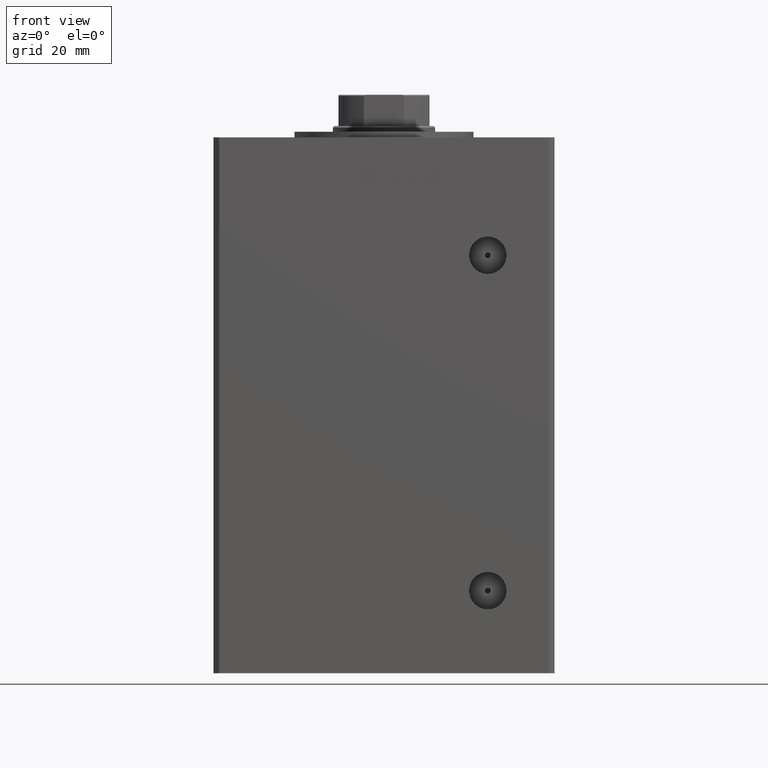
[diagram: clean part render]
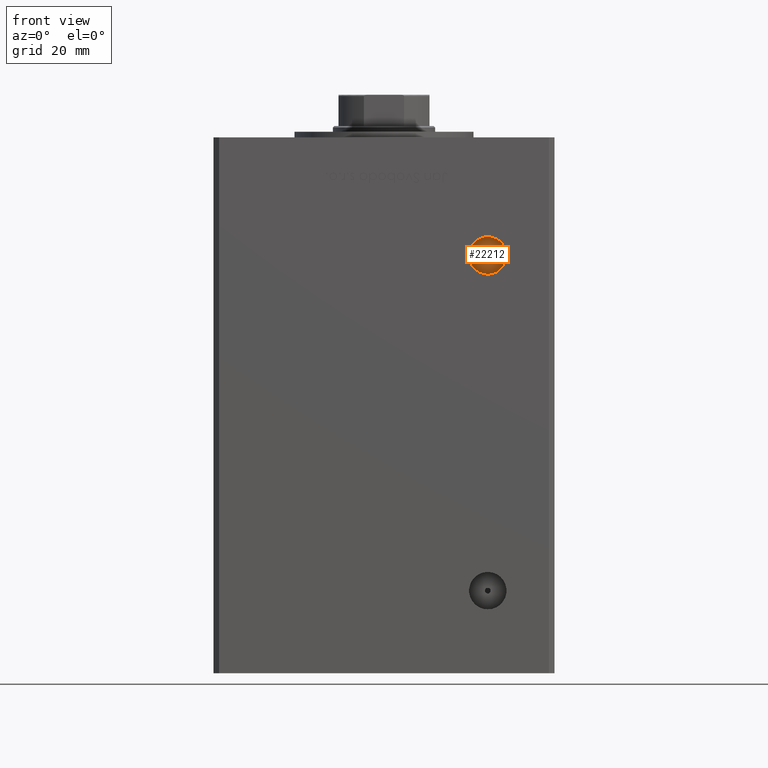
[diagram: same view with one face highlighted and labeled with its STEP entity id]
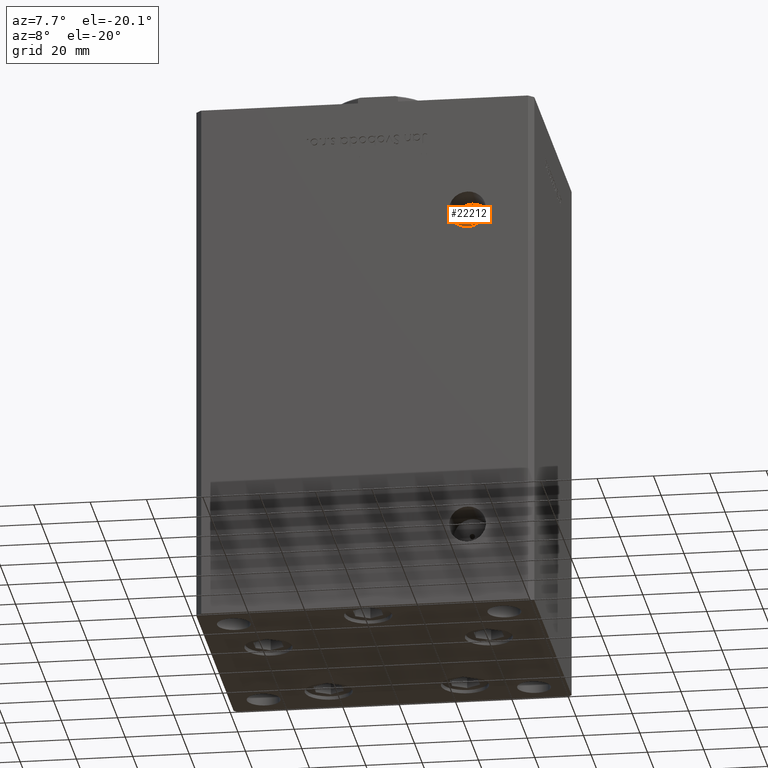
[diagram: same view with one face highlighted and labeled with its STEP entity id]
A machine part, front view. The second image highlights one B-rep face of the part: STEP entity #22212.
A second angle (auxiliary view) of the same face is appended — the face is thin or edge-on in the first view.
In plain terms, the highlighted planar face has unit normal (0, -1, 0).
Its self-contained STEP definition (entity closure, byte-faithful):
#657 = AXIS2_PLACEMENT_3D ( 'NONE', #15999, #23660, #3891 ) ;
#2016 = AXIS2_PLACEMENT_3D ( 'NONE', #2454, #31167, #18527 ) ;
#2454 = CARTESIAN_POINT ( 'NONE',  ( 36.49999999999997158, -38.00000000000000711, 127.0000000000000000 ) ) ;
#3394 = AXIS2_PLACEMENT_3D ( 'NONE', #32630, #13117, #25236 ) ;
#3891 = DIRECTION ( 'NONE',  ( 0.000000000000000000, 0.000000000000000000, -1.000000000000000000 ) ) ;
#4360 = EDGE_CURVE ( 'NONE', #9219, #30984, #36507, .T. ) ;
#7717 = DIRECTION ( 'NONE',  ( 0.000000000000000000, -0.000000000000000000, -1.000000000000000000 ) ) ;
#9219 = VERTEX_POINT ( 'NONE', #32796 ) ;
#10702 = ORIENTED_EDGE ( 'NONE', *, *, #26979, .F. ) ;
#11357 = CARTESIAN_POINT ( 'NONE',  ( 36.49999999999997158, -38.00000000000000711, 126.0000000000000000 ) ) ;
#11519 = EDGE_LOOP ( 'NONE', ( #14942, #10702 ) ) ;
#12547 = DIRECTION ( 'NONE',  ( 0.000000000000000000, 0.000000000000000000, -1.000000000000000000 ) ) ;
#12941 = CIRCLE ( 'NONE', #2016, 1.000000000000000888 ) ;
#13117 = DIRECTION ( 'NONE',  ( 0.000000000000000000, -1.000000000000000000, 0.000000000000000000 ) ) ;
#14942 = ORIENTED_EDGE ( 'NONE', *, *, #36903, .F. ) ;
#15999 = CARTESIAN_POINT ( 'NONE',  ( 36.49999999999997158, -38.00000000000000711, 127.0000000000000000 ) ) ;
#18527 = DIRECTION ( 'NONE',  ( 0.000000000000000000, 0.000000000000000000, -1.000000000000000000 ) ) ;
#19745 = VERTEX_POINT ( 'NONE', #29805 ) ;
#20348 = FACE_OUTER_BOUND ( 'NONE', #31249, .T. ) ;
#22212 = ADVANCED_FACE ( 'NONE', ( #43820, #20348 ), #31700, .T. ) ;
#23398 = VERTEX_POINT ( 'NONE', #11357 ) ;
#23660 = DIRECTION ( 'NONE',  ( -0.000000000000000000, 1.000000000000000000, -0.000000000000000000 ) ) ;
#24059 = DIRECTION ( 'NONE',  ( 0.000000000000000000, -1.000000000000000000, 0.000000000000000000 ) ) ;
#24730 = CARTESIAN_POINT ( 'NONE',  ( 36.49999999999997158, -38.00000000000000711, 133.5800000000000125 ) ) ;
#25236 = DIRECTION ( 'NONE',  ( 0.000000000000000000, 0.000000000000000000, -1.000000000000000000 ) ) ;
#26979 = EDGE_CURVE ( 'NONE', #19745, #23398, #33726, .T. ) ;
#28010 = CARTESIAN_POINT ( 'NONE',  ( 0.000000000000000000, -38.00000000000000711, 0.000000000000000000 ) ) ;
#29805 = CARTESIAN_POINT ( 'NONE',  ( 36.49999999999997158, -38.00000000000000711, 128.0000000000000000 ) ) ;
#30984 = VERTEX_POINT ( 'NONE', #24730 ) ;
#31167 = DIRECTION ( 'NONE',  ( 0.000000000000000000, -1.000000000000000000, 0.000000000000000000 ) ) ;
#31249 = EDGE_LOOP ( 'NONE', ( #36465, #43548 ) ) ;
#31700 = PLANE ( 'NONE',  #45504 ) ;
#32580 = CARTESIAN_POINT ( 'NONE',  ( 36.49999999999997158, -38.00000000000000711, 127.0000000000000000 ) ) ;
#32630 = CARTESIAN_POINT ( 'NONE',  ( 36.49999999999997158, -38.00000000000000711, 127.0000000000000000 ) ) ;
#32796 = CARTESIAN_POINT ( 'NONE',  ( 36.49999999999997158, -38.00000000000000711, 120.4200000000000159 ) ) ;
#33726 = CIRCLE ( 'NONE', #3394, 1.000000000000000888 ) ;
#34354 = CIRCLE ( 'NONE', #657, 6.579999999999988525 ) ;
#36465 = ORIENTED_EDGE ( 'NONE', *, *, #4360, .F. ) ;
#36507 = CIRCLE ( 'NONE', #38167, 6.579999999999988525 ) ;
#36903 = EDGE_CURVE ( 'NONE', #23398, #19745, #12941, .T. ) ;
#38167 = AXIS2_PLACEMENT_3D ( 'NONE', #32580, #48646, #12547 ) ;
#43548 = ORIENTED_EDGE ( 'NONE', *, *, #51849, .F. ) ;
#43820 = FACE_BOUND ( 'NONE', #11519, .T. ) ;
#45504 = AXIS2_PLACEMENT_3D ( 'NONE', #28010, #24059, #7717 ) ;
#48646 = DIRECTION ( 'NONE',  ( -0.000000000000000000, 1.000000000000000000, -0.000000000000000000 ) ) ;
#51849 = EDGE_CURVE ( 'NONE', #30984, #9219, #34354, .T. ) ;